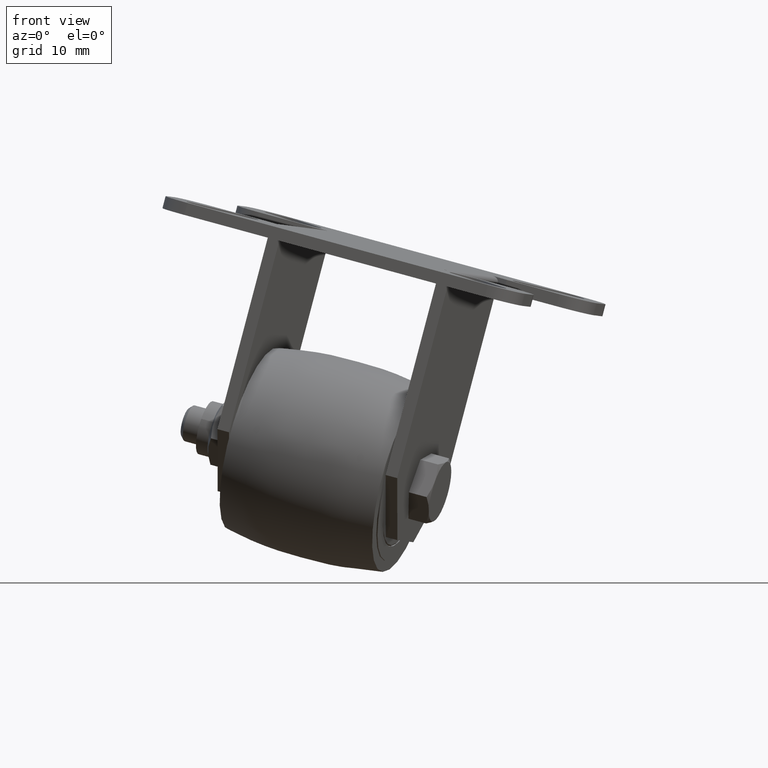
[diagram: clean part render]
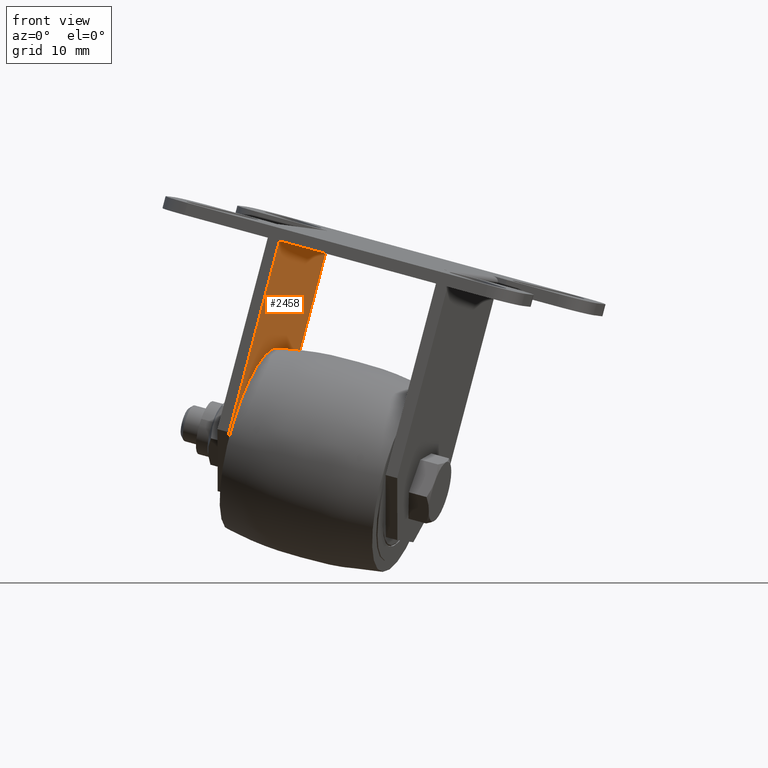
[diagram: same view with one face highlighted and labeled with its STEP entity id]
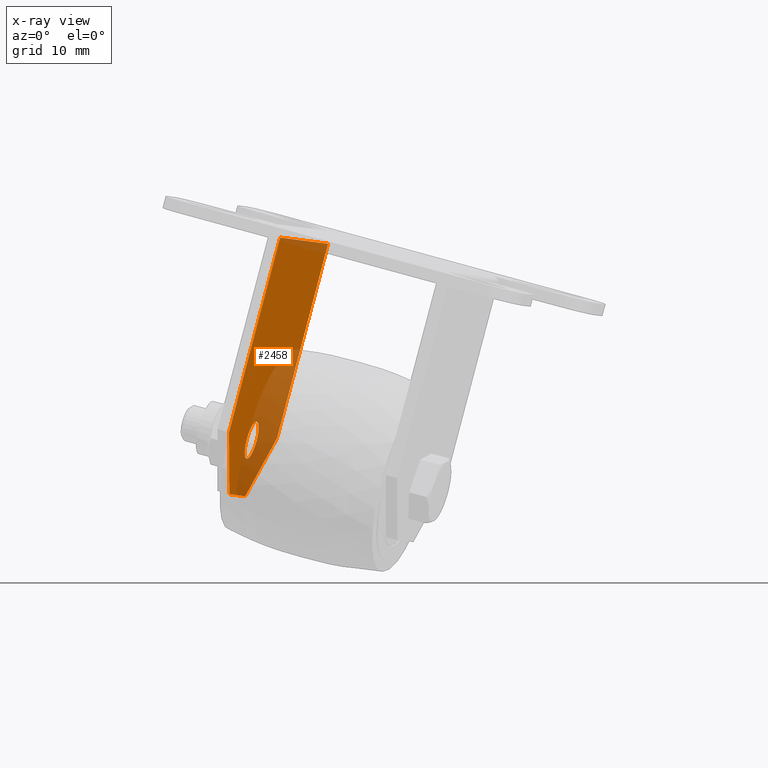
[diagram: x-ray of the same camera — body ghosted, the highlighted face saturated]
A machine part, front view. The second image highlights one B-rep face of the part: STEP entity #2458.
The next image is the same camera in x-ray: the body ghosted, the highlighted face saturated — about 30% of this face is hidden behind the body in this view.
In plain terms, the highlighted planar face has unit normal (0.9323, -0.2575, -0.2541).
Its self-contained STEP definition (entity closure, byte-faithful):
#71=LINE('',#4455,#219);
#161=LINE('',#4712,#309);
#164=LINE('',#4718,#312);
#165=LINE('',#4721,#313);
#168=LINE('',#4727,#316);
#172=LINE('',#4734,#320);
#219=VECTOR('',#3129,30.);
#309=VECTOR('',#3383,32.5);
#312=VECTOR('',#3388,14.1421356237309);
#313=VECTOR('',#3391,32.5);
#316=VECTOR('',#3396,10.);
#320=VECTOR('',#3404,14.1421356237309);
#520=PLANE('',#2735);
#594=FACE_BOUND('',#928,.T.);
#725=FACE_OUTER_BOUND('',#927,.T.);
#927=EDGE_LOOP('',(#2233,#2234,#2235,#2236,#2237,#2238));
#928=EDGE_LOOP('',(#2239));
#1053=CIRCLE('',#2725,3.1);
#1190=VERTEX_POINT('',#4452);
#1191=VERTEX_POINT('',#4454);
#1271=VERTEX_POINT('',#4698);
#1276=VERTEX_POINT('',#4710);
#1278=VERTEX_POINT('',#4716);
#1279=VERTEX_POINT('',#4720);
#1281=VERTEX_POINT('',#4726);
#1467=EDGE_CURVE('',#1191,#1190,#71,.T.);
#1590=EDGE_CURVE('',#1271,#1271,#1053,.T.);
#1596=EDGE_CURVE('',#1190,#1276,#161,.T.);
#1599=EDGE_CURVE('',#1278,#1276,#164,.F.);
#1600=EDGE_CURVE('',#1191,#1279,#165,.T.);
#1603=EDGE_CURVE('',#1281,#1278,#168,.T.);
#1607=EDGE_CURVE('',#1279,#1281,#172,.T.);
#2233=ORIENTED_EDGE('',*,*,#1600,.F.);
#2234=ORIENTED_EDGE('',*,*,#1467,.T.);
#2235=ORIENTED_EDGE('',*,*,#1596,.T.);
#2236=ORIENTED_EDGE('',*,*,#1599,.F.);
#2237=ORIENTED_EDGE('',*,*,#1603,.F.);
#2238=ORIENTED_EDGE('',*,*,#1607,.F.);
#2239=ORIENTED_EDGE('',*,*,#1590,.F.);
#2458=ADVANCED_FACE('',(#725,#594),#520,.T.);
#2725=AXIS2_PLACEMENT_3D('',#4699,#3369,#3370);
#2735=AXIS2_PLACEMENT_3D('',#4733,#3402,#3403);
#3129=DIRECTION('',(0.,-1.,0.));
#3369=DIRECTION('center_axis',(1.,0.,0.));
#3370=DIRECTION('ref_axis',(0.,-1.,0.));
#3383=DIRECTION('',(0.,0.,-1.));
#3388=DIRECTION('',(0.,0.707106781186547,-0.707106781186547));
#3391=DIRECTION('',(0.,0.,-1.));
#3396=DIRECTION('',(0.,-1.,0.));
#3402=DIRECTION('center_axis',(1.,0.,0.));
#3403=DIRECTION('ref_axis',(0.,-1.,0.));
#3404=DIRECTION('',(0.,-0.707106781186547,-0.707106781186547));
#4452=CARTESIAN_POINT('',(-13.5599088669,-15.,0.));
#4454=CARTESIAN_POINT('',(-13.5599088669,15.,0.));
#4455=CARTESIAN_POINT('',(-13.5599088669,0.,0.));
#4698=CARTESIAN_POINT('',(-13.5599088669,-3.1,-33.3));
#4699=CARTESIAN_POINT('Origin',(-13.5599088669,0.,-33.3));
#4710=CARTESIAN_POINT('',(-13.5599088669,-15.,-32.5));
#4712=CARTESIAN_POINT('',(-13.5599088669,-15.,-16.25));
#4716=CARTESIAN_POINT('',(-13.5599088669,-5.,-42.5));
#4718=CARTESIAN_POINT('',(-13.5599088669,-10.,-37.5));
#4720=CARTESIAN_POINT('',(-13.5599088669,15.,-32.5));
#4721=CARTESIAN_POINT('',(-13.5599088669,15.,-16.25));
#4726=CARTESIAN_POINT('',(-13.5599088669,5.,-42.5));
#4727=CARTESIAN_POINT('',(-13.5599088669,-3.5527136788E-15,-42.5));
#4733=CARTESIAN_POINT('Origin',(-13.5599088669,15.,0.));
#4734=CARTESIAN_POINT('',(-13.5599088669,10.,-37.5));